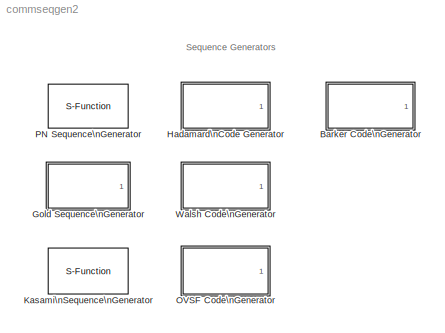
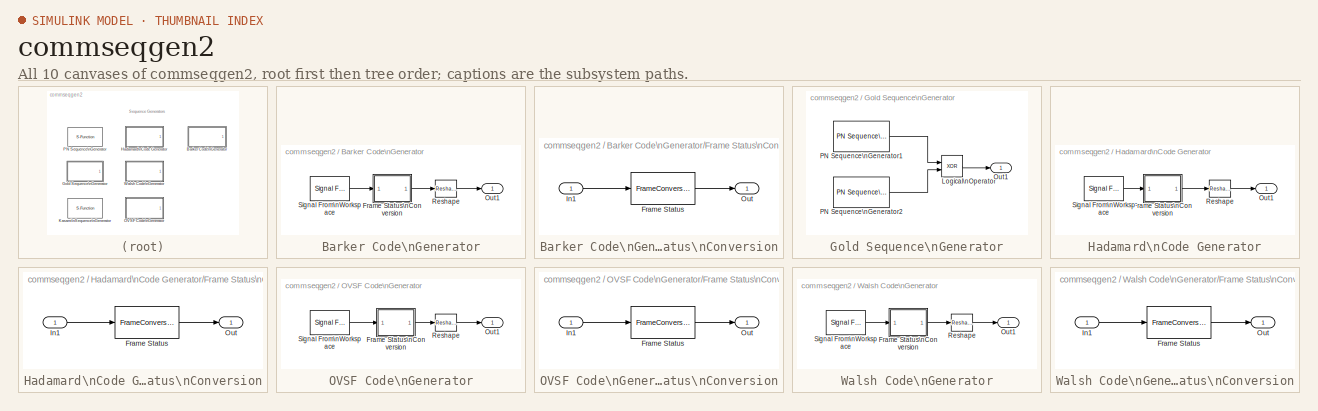
[diagram: thumbnail index - all 10 canvases of the model, root first then tree order]
MODEL commseqgen2
KIND library
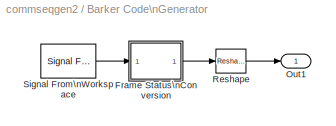
BLOCK [SubSystem] Barker Code\nGenerator
  MaskCallbackString = ||commblkbcgen(gcb,'cbFrameBased');|
  MaskDescription = Generate a Barker Code of the specified length.\n\nThe output code is in a bi-polar format with a {0, 1} to {1, -1} element mapping.
  MaskDisplay = disp('Barker Code\\nGenerator');
  MaskEnableString = on,on,on,off
  MaskHelp = helpview(commbhelp);
  MaskIconFrame = on
  MaskIconOpaque = on
  MaskIconRotate = none
  MaskIconUnits = autoscale
  MaskInitialization = [bCode, sampPerFrame, eStr] = commblkbcgen(gcb,'init');\nif (eStr.ecode == 1)\n	error(eStr.emsg);\nend
  MaskPromptString = Code length:|Sample time:|Frame-based outputs|Samples per frame:
  MaskSelfModifiable = on
  MaskStyleString = popup(1|2|3|4|5|7|11|13),edit,checkbox,edit
  MaskTabNameString = ,,,
  MaskToolTipString = on,on,on,on
  MaskTunableValueString = on,on,on,on
  MaskType = Barker Code Generator
  MaskValueString = 7|1|off|1
  MaskVarAliasString = ,,,
  MaskVariables = length=&1;ts=@2;frameBased=@3;sampPerFrame=@4;
  MaskVisibilityString = on,on,on,on
  MinAlgLoopOccurrences = off
  Ports = [0, 1]
  PropExecContextAcrossSSBoundary = on
  RTWSystemCode = Auto
  TreatAsAtomicUnit = off
BLOCK [SubSystem] Barker Code\nGenerator/Frame Status\nConversion
  AncestorBlock = dspsigattribs/Frame Status\nConversion
  MaskCallbackString = dspblkfrmconv|
  MaskDescription = Specify the frame status of the output signal.
  MaskDisplay = port_label(p.in1,   p.i1,  p.i1s);\nport_label(p.in2,   p.i2,  p.i2s);\nport_label(p.out, p.o1, p.o1s);\ndisp(str)
  MaskEnableString = on,on
  MaskHelp = web(dspbhelp);
  MaskIconFrame = on
  MaskIconOpaque = on
  MaskIconRotate = none
  MaskIconUnits = autoscale
  MaskInitialization = [p, str] = dspblkfrmconv('init');
  MaskPromptString = Inherit output frame status from Ref input port|Output signal:
  MaskSelfModifiable = on
  MaskStyleString = checkbox,popup(Frame-based|Sample-based)
  MaskTabNameString = ,
  MaskToolTipString = on,on
  MaskTunableValueString = on,on
  MaskType = Frame Status Conversion
  MaskValueString = off|Sample-based
  MaskVarAliasString = ,
  MaskVariables = growRefPort=@1;outframe=@2;
  MaskVisibilityString = on,on
  MinAlgLoopOccurrences = off
  Ports = [1, 1]
  PropExecContextAcrossSSBoundary = on
  RTWSystemCode = Auto
  ShowPortLabels = off
  TreatAsAtomicUnit = off
BLOCK [FrameConversion] Barker Code\nGenerator/Frame Status\nConversion/Frame Status
  OutFrame = Sample based
BLOCK [Inport] Barker Code\nGenerator/Frame Status\nConversion/In1
  IconDisplay = Port number
  LatchInput = off
BLOCK [Outport] Barker Code\nGenerator/Frame Status\nConversion/Out
  IconDisplay = Port number
BLOCK [Outport] Barker Code\nGenerator/Out1
  IconDisplay = Port number
BLOCK [Reference] Barker Code\nGenerator/Reshape  REF=simulink/Math\nOperations/Reshape
  OutputDimensionality = 1-D array
  OutputDimensions = [1,1]
  Ports = [1, 1]
  SourceBlock = simulink/Math\nOperations/Reshape
  SourceType = Reshape
BLOCK [Reference] Barker Code\nGenerator/Signal From\nWorkspace  REF=dspsrcs4/Signal From\nWorkspace
  OutputAfterFinalValue = Cyclic repetition
  Ports = [0, 1]
  SourceBlock = dspsrcs4/Signal From\nWorkspace
  SourceType = Signal From Workspace
  Ts = ts
  X = bCode
  nsamps = sampPerFrame
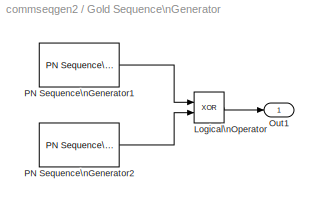
BLOCK [SubSystem] Gold Sequence\nGenerator
  MaskCallbackString = |||||||commblkgcgen(gcb,'cbFrameBased');||commblkgcgen(gcb,'cbReset');
  MaskDescription = Generate a Gold sequence from a set of sequences by specifying a preferred pair of polynomials.\n\nThe polynomial parameter values represent the shift register connections. Enter these values as either a binary vector or a descending ordered polynomial to indicate the connection points.\n\nThe initial states parameters are binary vectors that represent the starting state of the shift registers.\n\...<+434ch>
  MaskDisplay = disp('Gold Sequence\\nGenerator');\ntext(rstPortLbl.x, rstPortLbl.y, rstPortLbl.str);
  MaskEnableString = on,on,on,on,on,on,on,on,off,on
  MaskHelp = helpview(commbhelp);
  MaskIconFrame = on
  MaskIconOpaque = on
  MaskIconRotate = none
  MaskIconUnits = normalized
  MaskInitialization = [genPoly1, iniState1, genPoly2, iniState2, index, shift, rstPortLbl, eStr] = commblkgcgen(gcb, 'init');\nif (eStr.ecode == 1)\n	error(eStr.emsg);\nend
  MaskPromptString = Preferred polynomial (1):|Initial states (1):|Preferred polynomial (2):|Initial states (2):|Sequence index:|Shift:|Sample time:|Frame-based outputs|Samples per frame:|Reset on nonzero input
  MaskSelfModifiable = on
  MaskStyleString = edit,edit,edit,edit,edit,edit,edit,checkbox,edit,checkbox
  MaskTabNameString = ,,,,,,,,,
  MaskToolTipString = on,on,on,on,on,on,on,on,on,on
  MaskTunableValueString = on,on,on,on,on,on,on,on,on,off
  MaskType = Gold Sequence Generator
  MaskValueString = [1 0 0 0 0 1 1]|[0 0 0 0 0 1]|[1 1 0 0 1 1 1]|[0 0 0 0 0 1]|0|0|1|off|1|off
  MaskVarAliasString = ,,,,,,,,,
  MaskVariables = genPoly1=@1;iniState1=@2;genPoly2=@3;iniState2=@4;index=@5;shift=@6;ts=@7;frameBased=@8;sampPerFrame=@9;reset=@10;
  MaskVisibilityString = on,on,on,on,on,on,on,on,on,on
  MinAlgLoopOccurrences = off
  Ports = [0, 1]
  PropExecContextAcrossSSBoundary = on
  RTWSystemCode = Auto
  TreatAsAtomicUnit = off
BLOCK [Logic] Gold Sequence\nGenerator/Logical\nOperator
  AllPortsSameDT = off
  LogicDataType = float('double')
  Operator = XOR
  OutDataTypeMode = Specify via dialog
  Ports = [2, 1]
BLOCK [Outport] Gold Sequence\nGenerator/Out1
  IconDisplay = Port number
BLOCK [Reference] Gold Sequence\nGenerator/PN Sequence\nGenerator1  REF=commseqgen2/PN Sequence\nGenerator
  Ports = [0, 1]
  SourceBlock = commseqgen2/PN Sequence\nGenerator
  SourceType = PN Sequence Generator
  Ts = ts
  frameBased = off
  ini_sta = iniState1
  poly = genPoly1
  reset = off
  sampPerFrame = sampPerFrame
  shift = shift
BLOCK [Reference] Gold Sequence\nGenerator/PN Sequence\nGenerator2  REF=commseqgen2/PN Sequence\nGenerator
  Ports = [0, 1]
  SourceBlock = commseqgen2/PN Sequence\nGenerator
  SourceType = PN Sequence Generator
  Ts = ts
  frameBased = off
  ini_sta = iniState2
  poly = genPoly2
  reset = off
  sampPerFrame = sampPerFrame
  shift = shift + index
BLOCK [SubSystem] Hadamard\nCode Generator
  MaskCallbackString = |||commblkwcgen(gcb,'cbFrameBased');|
  MaskDescription = Generate a Hadamard Code from an orthogonal set of codes.\n\nThe code index parameter is an integer scalar in the range [0, N-1] where N is the code length.  When incremented by 1, it corresponds to the row index of a Hadamard matrix of size N x N. N must be an integer power of 2.\n\nThe output code is in a bipolar format with a {0, 1} to {1, -1} element mapping.
  MaskDisplay = disp('Hadamard\\nCode Generator');
  MaskEnableString = on,on,on,on,off
  MaskHelp = helpview(commbhelp);
  MaskIconFrame = on
  MaskIconOpaque = on
  MaskIconRotate = none
  MaskIconUnits = autoscale
  MaskInitialization = [hCode, sampPerFrame, eStr] = commblkhcgen(gcb,'init');\nif (eStr.ecode == 1)\n	error(eStr.emsg);\nend
  MaskPromptString = Code length:|Code index:|Sample time:|Frame-based outputs|Samples per frame:
  MaskSelfModifiable = on
  MaskStyleString = edit,edit,edit,checkbox,edit
  MaskTabNameString = ,,,,
  MaskToolTipString = on,on,on,on,on
  MaskTunableValueString = on,on,on,on,on
  MaskType = Hadamard Code Generator
  MaskValueString = 64|60|1|off|1
  MaskVarAliasString = ,,,,
  MaskVariables = length=@1;index=@2;ts=@3;frameBased=@4;sampPerFrame=@5;
  MaskVisibilityString = on,on,on,on,on
  MinAlgLoopOccurrences = off
  Ports = [0, 1]
  PropExecContextAcrossSSBoundary = on
  RTWSystemCode = Auto
  TreatAsAtomicUnit = off
BLOCK [SubSystem] Hadamard\nCode Generator/Frame Status\nConversion
  AncestorBlock = dspsigattribs/Frame Status\nConversion
  MaskCallbackString = dspblkfrmconv|
  MaskDescription = Specify the frame status of the output signal.
  MaskDisplay = port_label(p.in1,   p.i1,  p.i1s);\nport_label(p.in2,   p.i2,  p.i2s);\nport_label(p.out, p.o1, p.o1s);\ndisp(str)
  MaskEnableString = on,on
  MaskHelp = web(dspbhelp);
  MaskIconFrame = on
  MaskIconOpaque = on
  MaskIconRotate = none
  MaskIconUnits = autoscale
  MaskInitialization = [p, str] = dspblkfrmconv('init');
  MaskPromptString = Inherit output frame status from Ref input port|Output signal:
  MaskSelfModifiable = on
  MaskStyleString = checkbox,popup(Frame-based|Sample-based)
  MaskTabNameString = ,
  MaskToolTipString = on,on
  MaskTunableValueString = on,on
  MaskType = Frame Status Conversion
  MaskValueString = off|Sample-based
  MaskVarAliasString = ,
  MaskVariables = growRefPort=@1;outframe=@2;
  MaskVisibilityString = on,on
  MinAlgLoopOccurrences = off
  Ports = [1, 1]
  PropExecContextAcrossSSBoundary = on
  RTWSystemCode = Auto
  ShowPortLabels = off
  TreatAsAtomicUnit = off
BLOCK [FrameConversion] Hadamard\nCode Generator/Frame Status\nConversion/Frame Status
  OutFrame = Sample based
BLOCK [Inport] Hadamard\nCode Generator/Frame Status\nConversion/In1
  IconDisplay = Port number
  LatchInput = off
BLOCK [Outport] Hadamard\nCode Generator/Frame Status\nConversion/Out
  IconDisplay = Port number
BLOCK [Outport] Hadamard\nCode Generator/Out1
  IconDisplay = Port number
BLOCK [Reference] Hadamard\nCode Generator/Reshape  REF=simulink/Math\nOperations/Reshape
  OutputDimensionality = 1-D array
  OutputDimensions = [1,1]
  Ports = [1, 1]
  SourceBlock = simulink/Math\nOperations/Reshape
  SourceType = Reshape
BLOCK [Reference] Hadamard\nCode Generator/Signal From\nWorkspace  REF=dspsrcs4/Signal From\nWorkspace
  OutputAfterFinalValue = Cyclic repetition
  Ports = [0, 1]
  SourceBlock = dspsrcs4/Signal From\nWorkspace
  SourceType = Signal From Workspace
  Ts = ts
  X = hCode
  nsamps = sampPerFrame
BLOCK [S-Function] Kasami\nSequence\nGenerator
  FunctionName = scomksgen
  MaskCallbackString = |||||commblkksgen(gcb,'cbFrameBased');||
  MaskDescription = Generate a Kasami sequence from the set of Kasami sequences by specifying the generator polynomial.\n\nThe generator polynomial parameter value represents the shift register connections. Enter these values as either a binary vector or a descending ordered polynomial to indicate the connection points.\n\nThe initial states parameter is a binary vector that represents the starting state of the shift...<+325ch>
  MaskDisplay = disp('Kasami\\nSequence\\nGenerator');\ntext(rstPortLbl.x, rstPortLbl.y, rstPortLbl.str);
  MaskEnableString = on,on,on,on,on,on,off,on
  MaskHelp = helpview(commbhelp);
  MaskIconFrame = on
  MaskIconOpaque = on
  MaskIconRotate = none
  MaskIconUnits = normalized
  MaskInitialization = [genPoly, codeIdx, shift, rstPortLbl, eStr] = commblkksgen(gcb, 'init');\n if (eStr.ecode == 1)\n	error(eStr.emsg);\nend
  MaskPromptString = Generator polynomial:|Initial states:|Sequence index(es):|Shift:|Sample time:|Frame-based outputs|Samples per frame:|Reset on nonzero input
  MaskSelfModifiable = on
  MaskStyleString = edit,edit,edit,edit,edit,checkbox,edit,checkbox
  MaskTabNameString = ,,,,,,,
  MaskToolTipString = on,on,on,on,on,on,on,on
  MaskTunableValueString = on,on,on,on,on,on,on,off
  MaskType = Kasami Sequence Generator
  MaskValueString = [1 0 0 0 0 1 1]|[0 0 0 0 0 1]|0|0|1|off|1|off
  MaskVarAliasString = ,,,,,,,
  MaskVariables = genPoly=@1;iniState=@2;codeIdx=@3;shift=@4;ts=@5;frameBased=@6;sampPerFrame=@7;reset=@8;
  MaskVisibilityString = on,on,on,on,on,on,on,on
  Parameters = genPoly, iniState, codeIdx, shift, ts, frameBased, sampPerFrame, reset
  Ports = [0, 1]
BLOCK [SubSystem] OVSF Code\nGenerator
  MaskCallbackString = |||commblkovsfcgen(gcb,'cbFrameBased');|
  MaskDescription = Generate an Orthogonal Variable Spreading Factor (OVSF) Code from a set of orthogonal codes.\n\nThe code index parameter is an integer scalar in the range [0, N-1] where N is the spreading factor.  It corresponds to the bit-flipped row index of a Hadamard matrix of size N x N, when that is incremented by 1. N must be an integer power of 2.\n\nThe output code is in a bipolar format with a {0,1} to ...<+24ch>
  MaskDisplay = disp('OVSF Code\\nGenerator');
  MaskEnableString = on,on,on,on,off
  MaskHelp = helpview(commbhelp);
  MaskIconFrame = on
  MaskIconOpaque = on
  MaskIconRotate = none
  MaskIconUnits = autoscale
  MaskInitialization = [ovsfCode, sampPerFrame, eStr] = commblkovsfcgen(gcb,'init');\nif (eStr.ecode == 1)\n	error(eStr.emsg);\nend
  MaskPromptString = Spreading factor:|Code index:|Sample time:|Frame-based outputs|Samples per frame:
  MaskSelfModifiable = on
  MaskStyleString = edit,edit,edit,checkbox,edit
  MaskTabNameString = ,,,,
  MaskToolTipString = on,on,on,on,on
  MaskTunableValueString = on,on,on,on,on
  MaskType = OVSF Code Generator
  MaskValueString = 64|60|1|off|1
  MaskVarAliasString = ,,,,
  MaskVariables = spreadFact=@1;index=@2;ts=@3;frameBased=@4;sampPerFrame=@5;
  MaskVisibilityString = on,on,on,on,on
  MinAlgLoopOccurrences = off
  Ports = [0, 1]
  PropExecContextAcrossSSBoundary = on
  RTWSystemCode = Auto
  TreatAsAtomicUnit = off
BLOCK [SubSystem] OVSF Code\nGenerator/Frame Status\nConversion
  AncestorBlock = dspsigattribs/Frame Status\nConversion
  MaskCallbackString = dspblkfrmconv|
  MaskDescription = Specify the frame status of the output signal.
  MaskDisplay = port_label(p.in1,   p.i1,  p.i1s);\nport_label(p.in2,   p.i2,  p.i2s);\nport_label(p.out, p.o1, p.o1s);\ndisp(str)
  MaskEnableString = on,on
  MaskHelp = web(dspbhelp);
  MaskIconFrame = on
  MaskIconOpaque = on
  MaskIconRotate = none
  MaskIconUnits = autoscale
  MaskInitialization = [p, str] = dspblkfrmconv('init');
  MaskPromptString = Inherit output frame status from Ref input port|Output signal:
  MaskSelfModifiable = on
  MaskStyleString = checkbox,popup(Frame-based|Sample-based)
  MaskTabNameString = ,
  MaskToolTipString = on,on
  MaskTunableValueString = on,on
  MaskType = Frame Status Conversion
  MaskValueString = off|Sample-based
  MaskVarAliasString = ,
  MaskVariables = growRefPort=@1;outframe=@2;
  MaskVisibilityString = on,on
  MinAlgLoopOccurrences = off
  Ports = [1, 1]
  PropExecContextAcrossSSBoundary = on
  RTWSystemCode = Auto
  ShowPortLabels = off
  TreatAsAtomicUnit = off
BLOCK [FrameConversion] OVSF Code\nGenerator/Frame Status\nConversion/Frame Status
  OutFrame = Sample based
BLOCK [Inport] OVSF Code\nGenerator/Frame Status\nConversion/In1
  IconDisplay = Port number
  LatchInput = off
BLOCK [Outport] OVSF Code\nGenerator/Frame Status\nConversion/Out
  IconDisplay = Port number
BLOCK [Outport] OVSF Code\nGenerator/Out1
  IconDisplay = Port number
BLOCK [Reference] OVSF Code\nGenerator/Reshape  REF=simulink/Math\nOperations/Reshape
  OutputDimensionality = 1-D array
  OutputDimensions = [1,1]
  Ports = [1, 1]
  SourceBlock = simulink/Math\nOperations/Reshape
  SourceType = Reshape
BLOCK [Reference] OVSF Code\nGenerator/Signal From\nWorkspace  REF=dspsrcs4/Signal From\nWorkspace
  OutputAfterFinalValue = Cyclic repetition
  Ports = [0, 1]
  SourceBlock = dspsrcs4/Signal From\nWorkspace
  SourceType = Signal From Workspace
  Ts = ts
  X = ovsfCode
  nsamps = sampPerFrame
BLOCK [S-Function] PN Sequence\nGenerator
  FunctionName = scompnseq2
  MaskCallbackString = ||||commblkpnseq2(gcb,'cbFrameBased');||
  MaskDescription = Generate a pseudonoise (PN) sequence using a linear feedback shift register whose configuration is specified by the Generator polynomial parameter.\n\nThe generator polynomial parameter values represent the shift register connections. Enter these values as either a binary vector or a descending ordered polynomial to indicate the connection points.\n\nFor the binary vector representation the first ...<+510ch>
  MaskDisplay = disp('PN Sequence\\nGenerator');\ntext(rstPortLbl.x, rstPortLbl.y, rstPortLbl.str);
  MaskEnableString = on,on,on,on,on,off,on
  MaskHelp = helpview(commbhelp);
  MaskIconFrame = on
  MaskIconOpaque = on
  MaskIconRotate = none
  MaskIconUnits = normalized
  MaskInitialization = [poly, shift, rstPortLbl, eStr] = commblkpnseq2(gcb,'init');\nif eStr.ecode\n	error(eStr.emsg);\nend
  MaskPromptString = Generator polynomial:|Initial states:|Shift (or mask):|Sample time:|Frame-based outputs|Samples per frame:|Reset on nonzero input
  MaskSelfModifiable = on
  MaskStyleString = edit,edit,edit,edit,checkbox,edit,checkbox
  MaskTabNameString = ,,,,,,
  MaskToolTipString = on,on,on,on,on,on,on
  MaskTunableValueString = on,on,on,on,on,on,off
  MaskType = PN Sequence Generator
  MaskValueString = [1 0 0 0 0 1 1]|[0 0 0 0 0 1]|0|1|off|1|off
  MaskVarAliasString = ,,,,,,
  MaskVariables = poly=@1;ini_sta=@2;shift=@3;Ts=@4;frameBased=@5;sampPerFrame=@6;reset=@7;
  MaskVisibilityString = on,on,on,on,on,on,on
  Parameters = poly, ini_sta, shift, Ts, frameBased, sampPerFrame, reset
  Ports = [0, 1]
BLOCK [SubSystem] Walsh Code\nGenerator
  MaskCallbackString = |||commblkwcgen(gcb,'cbFrameBased');|
  MaskDescription = Generate a Walsh Code from an orthogonal set of codes.\n\nThe code index parameter is a scalar in the range [0, N-1] where N is the code length.  It corresponds to the number of zero crossings in an output code of length N. N must be an integer power of 2.\n\nThe output code is in a bipolar format with a {0, 1} to {1, -1} element mapping.
  MaskDisplay = disp('Walsh Code\\nGenerator');
  MaskEnableString = on,on,on,on,off
  MaskHelp = helpview(commbhelp);
  MaskIconFrame = on
  MaskIconOpaque = on
  MaskIconRotate = none
  MaskIconUnits = autoscale
  MaskInitialization = [wCode, sampPerFrame, eStr] = commblkwcgen(gcb,'init');\nif (eStr.ecode == 1)\n	error(eStr.emsg);\nend
  MaskPromptString = Code length:|Code index:|Sample time:|Frame-based outputs|Samples per frame:
  MaskSelfModifiable = on
  MaskStyleString = edit,edit,edit,checkbox,edit
  MaskTabNameString = ,,,,
  MaskToolTipString = on,on,on,on,on
  MaskTunableValueString = on,on,on,on,on
  MaskType = Walsh Code Generator
  MaskValueString = 64|60|1|off|1
  MaskVarAliasString = ,,,,
  MaskVariables = length=@1;index=@2;ts=@3;frameBased=@4;sampPerFrame=@5;
  MaskVisibilityString = on,on,on,on,on
  MinAlgLoopOccurrences = off
  Ports = [0, 1]
  PropExecContextAcrossSSBoundary = on
  RTWSystemCode = Auto
  TreatAsAtomicUnit = off
BLOCK [SubSystem] Walsh Code\nGenerator/Frame Status\nConversion
  AncestorBlock = dspsigattribs/Frame Status\nConversion
  MaskCallbackString = dspblkfrmconv|
  MaskDescription = Specify the frame status of the output signal.
  MaskDisplay = port_label(p.in1,   p.i1,  p.i1s);\nport_label(p.in2,   p.i2,  p.i2s);\nport_label(p.out, p.o1, p.o1s);\ndisp(str)
  MaskEnableString = on,on
  MaskHelp = web(dspbhelp);
  MaskIconFrame = on
  MaskIconOpaque = on
  MaskIconRotate = none
  MaskIconUnits = autoscale
  MaskInitialization = [p, str] = dspblkfrmconv('init');
  MaskPromptString = Inherit output frame status from Ref input port|Output signal:
  MaskSelfModifiable = on
  MaskStyleString = checkbox,popup(Frame-based|Sample-based)
  MaskTabNameString = ,
  MaskToolTipString = on,on
  MaskTunableValueString = on,on
  MaskType = Frame Status Conversion
  MaskValueString = off|Sample-based
  MaskVarAliasString = ,
  MaskVariables = growRefPort=@1;outframe=@2;
  MaskVisibilityString = on,on
  MinAlgLoopOccurrences = off
  Ports = [1, 1]
  PropExecContextAcrossSSBoundary = on
  RTWSystemCode = Auto
  ShowPortLabels = off
  TreatAsAtomicUnit = off
BLOCK [FrameConversion] Walsh Code\nGenerator/Frame Status\nConversion/Frame Status
  OutFrame = Sample based
BLOCK [Inport] Walsh Code\nGenerator/Frame Status\nConversion/In1
  IconDisplay = Port number
  LatchInput = off
BLOCK [Outport] Walsh Code\nGenerator/Frame Status\nConversion/Out
  IconDisplay = Port number
BLOCK [Outport] Walsh Code\nGenerator/Out1
  IconDisplay = Port number
BLOCK [Reference] Walsh Code\nGenerator/Reshape  REF=simulink/Math\nOperations/Reshape
  OutputDimensionality = 1-D array
  OutputDimensions = [1,1]
  Ports = [1, 1]
  SourceBlock = simulink/Math\nOperations/Reshape
  SourceType = Reshape
BLOCK [Reference] Walsh Code\nGenerator/Signal From\nWorkspace  REF=dspsrcs4/Signal From\nWorkspace
  OutputAfterFinalValue = Cyclic repetition
  Ports = [0, 1]
  SourceBlock = dspsrcs4/Signal From\nWorkspace
  SourceType = Signal From Workspace
  Ts = ts
  X = wCode
  nsamps = sampPerFrame
ANNOTATION (root): Sequence Generators
LINE Barker Code\nGenerator/Frame Status\nConversion/Frame Status:1 -> Barker Code\nGenerator/Frame Status\nConversion/Out:1
LINE Barker Code\nGenerator/Frame Status\nConversion/In1:1 -> Barker Code\nGenerator/Frame Status\nConversion/Frame Status:1
LINE Barker Code\nGenerator/Frame Status\nConversion:1 -> Barker Code\nGenerator/Reshape:1
LINE Barker Code\nGenerator/Reshape:1 -> Barker Code\nGenerator/Out1:1
LINE Barker Code\nGenerator/Signal From\nWorkspace:1 -> Barker Code\nGenerator/Frame Status\nConversion:1
LINE Gold Sequence\nGenerator/Logical\nOperator:1 -> Gold Sequence\nGenerator/Out1:1
LINE Gold Sequence\nGenerator/PN Sequence\nGenerator1:1 -> Gold Sequence\nGenerator/Logical\nOperator:1
LINE Gold Sequence\nGenerator/PN Sequence\nGenerator2:1 -> Gold Sequence\nGenerator/Logical\nOperator:2
LINE Hadamard\nCode Generator/Frame Status\nConversion/Frame Status:1 -> Hadamard\nCode Generator/Frame Status\nConversion/Out:1
LINE Hadamard\nCode Generator/Frame Status\nConversion/In1:1 -> Hadamard\nCode Generator/Frame Status\nConversion/Frame Status:1
LINE Hadamard\nCode Generator/Frame Status\nConversion:1 -> Hadamard\nCode Generator/Reshape:1
LINE Hadamard\nCode Generator/Reshape:1 -> Hadamard\nCode Generator/Out1:1
LINE Hadamard\nCode Generator/Signal From\nWorkspace:1 -> Hadamard\nCode Generator/Frame Status\nConversion:1
LINE OVSF Code\nGenerator/Frame Status\nConversion/Frame Status:1 -> OVSF Code\nGenerator/Frame Status\nConversion/Out:1
LINE OVSF Code\nGenerator/Frame Status\nConversion/In1:1 -> OVSF Code\nGenerator/Frame Status\nConversion/Frame Status:1
LINE OVSF Code\nGenerator/Frame Status\nConversion:1 -> OVSF Code\nGenerator/Reshape:1
LINE OVSF Code\nGenerator/Reshape:1 -> OVSF Code\nGenerator/Out1:1
LINE OVSF Code\nGenerator/Signal From\nWorkspace:1 -> OVSF Code\nGenerator/Frame Status\nConversion:1
LINE Walsh Code\nGenerator/Frame Status\nConversion/Frame Status:1 -> Walsh Code\nGenerator/Frame Status\nConversion/Out:1
LINE Walsh Code\nGenerator/Frame Status\nConversion/In1:1 -> Walsh Code\nGenerator/Frame Status\nConversion/Frame Status:1
LINE Walsh Code\nGenerator/Frame Status\nConversion:1 -> Walsh Code\nGenerator/Reshape:1
LINE Walsh Code\nGenerator/Reshape:1 -> Walsh Code\nGenerator/Out1:1
LINE Walsh Code\nGenerator/Signal From\nWorkspace:1 -> Walsh Code\nGenerator/Frame Status\nConversion:1
